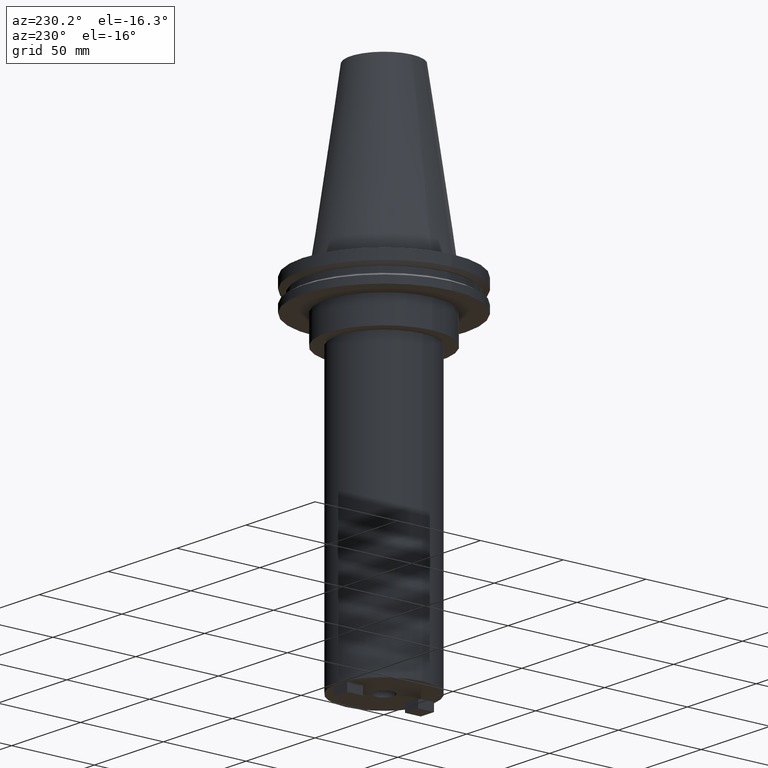
[diagram: clean part render]
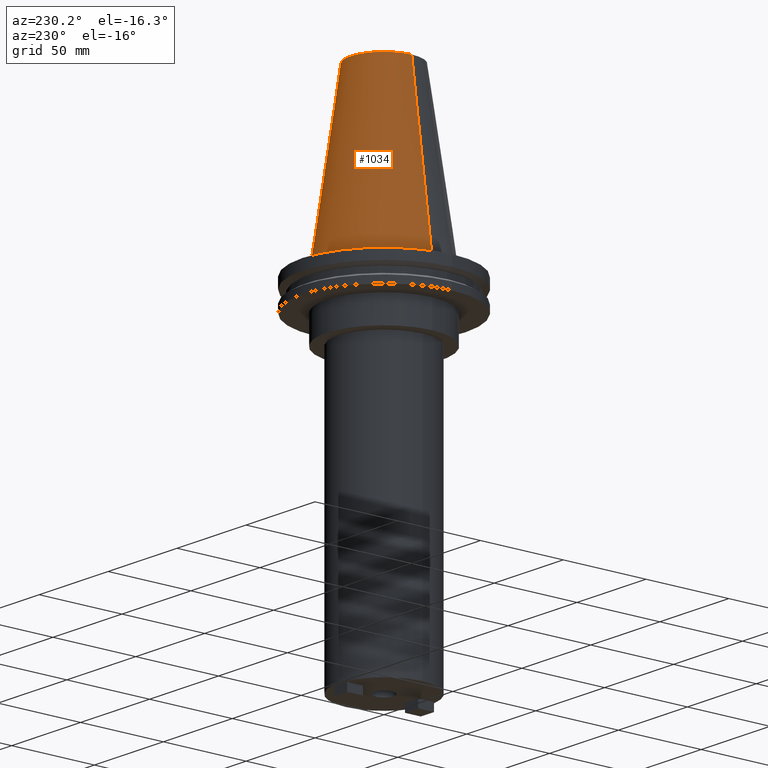
[diagram: same view with one face highlighted and labeled with its STEP entity id]
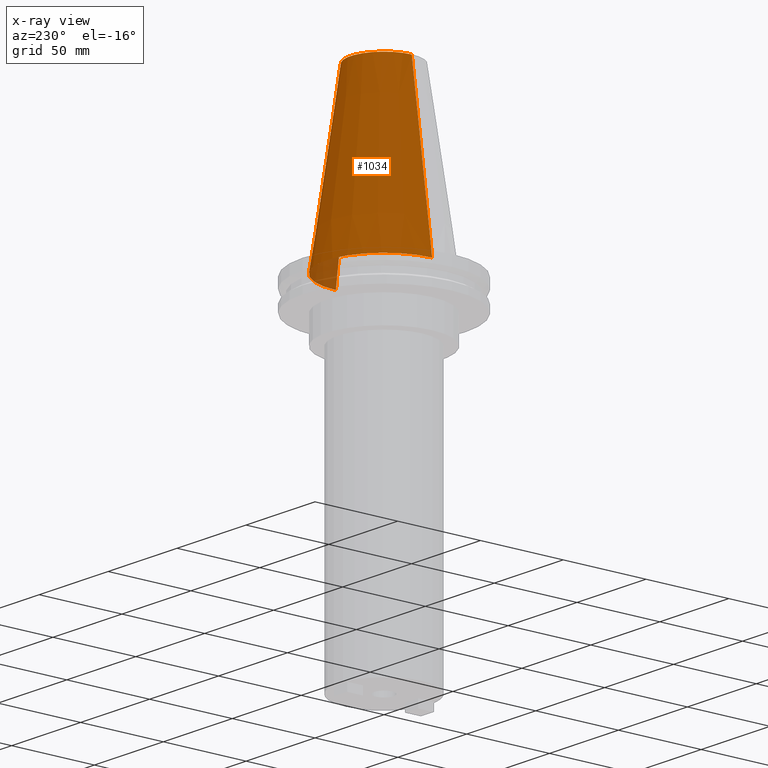
[diagram: x-ray of the same camera — body ghosted, the highlighted face saturated]
A machine part, auxiliary view. The second image highlights one B-rep face of the part: STEP entity #1034.
The next image is the same camera in x-ray: the body ghosted, the highlighted face saturated — about 3% of this face is hidden behind the body in this view.
In plain terms, the highlighted conical surface has half-angle 8.297 deg.
Its self-contained STEP definition (entity closure, byte-faithful):
#7 = CARTESIAN_POINT ( 'NONE',  ( -34.92499999999999005, 0.000000000000000000, 0.000000000000000000 ) ) ;
#12 = EDGE_CURVE ( 'NONE', #749, #692, #894, .T. ) ;
#36 = ORIENTED_EDGE ( 'NONE', *, *, #337, .F. ) ;
#38 = CARTESIAN_POINT ( 'NONE',  ( 34.92499999999999005, 4.277078946022130098E-15, 0.000000000000000000 ) ) ;
#84 = ORIENTED_EDGE ( 'NONE', *, *, #386, .T. ) ;
#114 = DIRECTION ( 'NONE',  ( -0.000000000000000000, -0.000000000000000000, 1.000000000000000000 ) ) ;
#185 = DIRECTION ( 'NONE',  ( -1.000000000000000000, 0.000000000000000000, 0.000000000000000000 ) ) ;
#198 = DIRECTION ( 'NONE',  ( 1.000000000000000000, 0.000000000000000000, 0.000000000000000000 ) ) ;
#225 = CARTESIAN_POINT ( 'NONE',  ( 0.000000000000000000, 0.000000000000000000, 0.000000000000000000 ) ) ;
#327 = VECTOR ( 'NONE', #471, 999.9999999999998863 ) ;
#337 = EDGE_CURVE ( 'NONE', #531, #749, #686, .T. ) ;
#345 = CARTESIAN_POINT ( 'NONE',  ( 0.000000000000000000, 0.000000000000000000, 101.5999999999999801 ) ) ;
#386 = EDGE_CURVE ( 'NONE', #1017, #692, #977, .T. ) ;
#434 = AXIS2_PLACEMENT_3D ( 'NONE', #746, #929, #185 ) ;
#468 = EDGE_CURVE ( 'NONE', #531, #1017, #1053, .T. ) ;
#471 = DIRECTION ( 'NONE',  ( -0.1443082272672999988, 0.000000000000000000, -0.9895327864921755756 ) ) ;
#472 = CONICAL_SURFACE ( 'NONE', #434, 34.92499999999999005, 0.1448138465474119452 ) ;
#531 = VERTEX_POINT ( 'NONE', #583 ) ;
#583 = CARTESIAN_POINT ( 'NONE',  ( 20.10819343178871321, 3.369811209154858606E-15, 101.5999999999999801 ) ) ;
#586 = CARTESIAN_POINT ( 'NONE',  ( 34.92499999999999005, 4.277078946022130098E-15, 0.000000000000000000 ) ) ;
#671 = FACE_OUTER_BOUND ( 'NONE', #954, .T. ) ;
#686 = CIRCLE ( 'NONE', #791, 20.10819343178871321 ) ;
#692 = VERTEX_POINT ( 'NONE', #7 ) ;
#703 = ORIENTED_EDGE ( 'NONE', *, *, #12, .F. ) ;
#746 = CARTESIAN_POINT ( 'NONE',  ( 0.000000000000000000, 0.000000000000000000, 0.000000000000000000 ) ) ;
#749 = VERTEX_POINT ( 'NONE', #919 ) ;
#783 = AXIS2_PLACEMENT_3D ( 'NONE', #225, #114, #792 ) ;
#791 = AXIS2_PLACEMENT_3D ( 'NONE', #345, #1014, #198 ) ;
#792 = DIRECTION ( 'NONE',  ( 1.000000000000000000, 0.000000000000000000, 0.000000000000000000 ) ) ;
#823 = VECTOR ( 'NONE', #870, 999.9999999999998863 ) ;
#870 = DIRECTION ( 'NONE',  ( 0.1443082272672999988, 1.767266086135277066E-17, -0.9895327864921755756 ) ) ;
#894 = LINE ( 'NONE', #1036, #327 ) ;
#919 = CARTESIAN_POINT ( 'NONE',  ( -20.10819343178871321, 0.000000000000000000, 101.5999999999999801 ) ) ;
#929 = DIRECTION ( 'NONE',  ( 0.000000000000000000, 0.000000000000000000, -1.000000000000000000 ) ) ;
#954 = EDGE_LOOP ( 'NONE', ( #36, #1069, #84, #703 ) ) ;
#977 = CIRCLE ( 'NONE', #783, 34.92499999999999005 ) ;
#1014 = DIRECTION ( 'NONE',  ( -0.000000000000000000, -0.000000000000000000, 1.000000000000000000 ) ) ;
#1017 = VERTEX_POINT ( 'NONE', #586 ) ;
#1034 = ADVANCED_FACE ( 'NONE', ( #671 ), #472, .T. ) ;
#1036 = CARTESIAN_POINT ( 'NONE',  ( -34.92499999999999005, 0.000000000000000000, 0.000000000000000000 ) ) ;
#1053 = LINE ( 'NONE', #38, #823 ) ;
#1069 = ORIENTED_EDGE ( 'NONE', *, *, #468, .T. ) ;